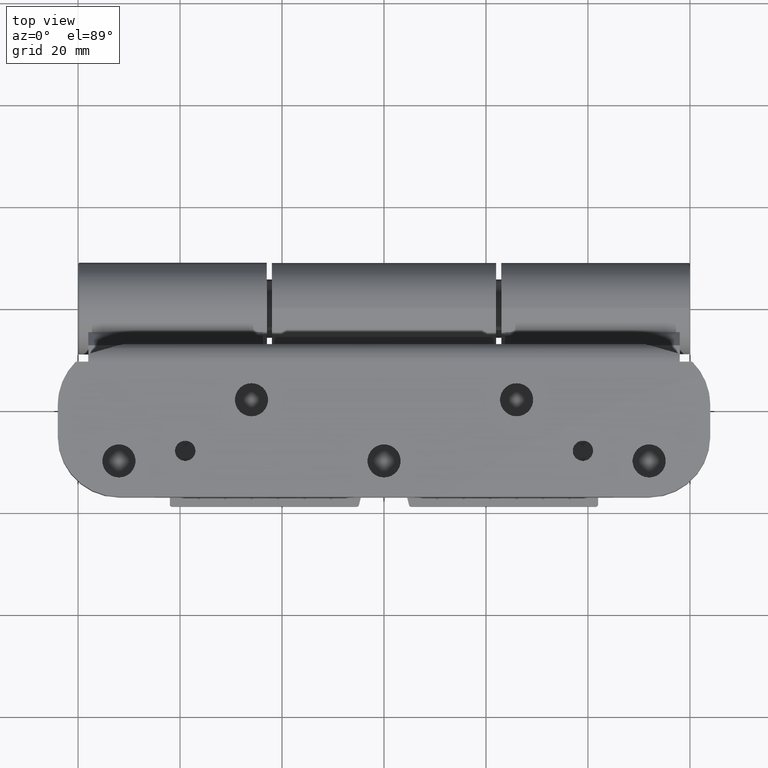
[diagram: clean part render]
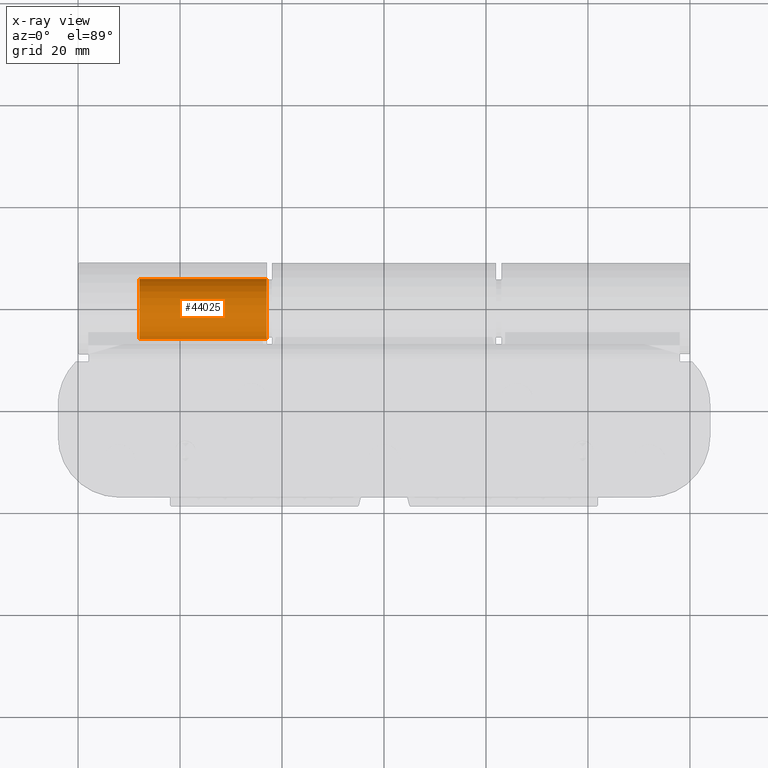
[diagram: x-ray — body ghosted, one internal face saturated and labeled with its STEP entity id]
A machine part, top view, then the same camera in x-ray: the body is ghosted and one INTERNAL B-rep face — a face not visible from any outside direction — is saturated and labeled: STEP entity #44025.
In plain terms, the highlighted cylindrical surface (edge-blend (fillet) strip) has radius 6 mm, axis along (1, 0, 0).
Its self-contained STEP definition (entity closure, byte-faithful):
#2054 = LINE ( 'NONE', #44354, #14122 ) ;
#2068 = AXIS2_PLACEMENT_3D ( 'NONE', #5859, #38346, #42998 ) ;
#3466 = ORIENTED_EDGE ( 'NONE', *, *, #27920, .F. ) ;
#3803 = DIRECTION ( 'NONE',  ( -1.000000000000000000, -2.457646059305949850E-16, -3.214216435727796904E-16 ) ) ;
#4795 = CARTESIAN_POINT ( 'NONE',  ( 25.50000000000000000, 1.721466110126807829E-14, -5.999999999999997335 ) ) ;
#5859 = CARTESIAN_POINT ( 'NONE',  ( 25.00000000000000000, 1.647987302177966740E-14, 6.938893903907228378E-15 ) ) ;
#5901 = CARTESIAN_POINT ( 'NONE',  ( 1.928529861436679227E-15, 1.774937036747276913E-30, 6.000000000000004441 ) ) ;
#7375 = CARTESIAN_POINT ( 'NONE',  ( 25.50000000000000355, 1.647987302177966740E-14, 6.938893903907228378E-15 ) ) ;
#10544 = DIRECTION ( 'NONE',  ( -1.000000000000000000, -2.457646059305949850E-16, -3.214216435727796904E-16 ) ) ;
#12735 = CIRCLE ( 'NONE', #19761, 6.000000000000004441 ) ;
#13482 = ORIENTED_EDGE ( 'NONE', *, *, #42258, .F. ) ;
#14122 = VECTOR ( 'NONE', #34772, 1000.000000000000000 ) ;
#14364 = ORIENTED_EDGE ( 'NONE', *, *, #18496, .T. ) ;
#14611 = CARTESIAN_POINT ( 'NONE',  ( 25.00000000000000355, 1.721466110126807829E-14, -5.999999999999992006 ) ) ;
#15887 = FACE_OUTER_BOUND ( 'NONE', #46494, .T. ) ;
#18496 = EDGE_CURVE ( 'NONE', #40267, #30237, #12735, .T. ) ;
#19761 = AXIS2_PLACEMENT_3D ( 'NONE', #48194, #10544, #47118 ) ;
#22368 = DIRECTION ( 'NONE',  ( -1.000000000000000000, -2.457646059305949850E-16, -3.214216435727796904E-16 ) ) ;
#24153 = CYLINDRICAL_SURFACE ( 'NONE', #50429, 6.000000000000004441 ) ;
#27920 = EDGE_CURVE ( 'NONE', #51440, #30237, #2054, .T. ) ;
#30237 = VERTEX_POINT ( 'NONE', #5901 ) ;
#34772 = DIRECTION ( 'NONE',  ( -1.000000000000000000, -2.457646059305949850E-16, -3.214216435727796904E-16 ) ) ;
#36766 = VERTEX_POINT ( 'NONE', #14611 ) ;
#36885 = ORIENTED_EDGE ( 'NONE', *, *, #40037, .T. ) ;
#37048 = VECTOR ( 'NONE', #22368, 1000.000000000000000 ) ;
#38346 = DIRECTION ( 'NONE',  ( -1.000000000000000000, -2.457646059305949850E-16, -3.214216435727796904E-16 ) ) ;
#40037 = EDGE_CURVE ( 'NONE', #36766, #40267, #46571, .T. ) ;
#40267 = VERTEX_POINT ( 'NONE', #44879 ) ;
#42258 = EDGE_CURVE ( 'NONE', #36766, #51440, #50327, .T. ) ;
#42998 = DIRECTION ( 'NONE',  ( 5.782411586589352708E-16, 5.135813185032625146E-31, 1.000000000000000000 ) ) ;
#44025 = ADVANCED_FACE ( 'NONE', ( #15887 ), #24153, .F. ) ;
#44354 = CARTESIAN_POINT ( 'NONE',  ( 25.50000000000000355, 1.647987302177967055E-14, 6.000000000000011546 ) ) ;
#44749 = DIRECTION ( 'NONE',  ( 5.782411586589352708E-16, 5.135813185032625146E-31, 1.000000000000000000 ) ) ;
#44879 = CARTESIAN_POINT ( 'NONE',  ( 1.928529861436674494E-15, 1.401972122417034111E-14, -6.000000000000000000 ) ) ;
#46494 = EDGE_LOOP ( 'NONE', ( #13482, #36885, #14364, #3466 ) ) ;
#46571 = LINE ( 'NONE', #4795, #37048 ) ;
#47118 = DIRECTION ( 'NONE',  ( 3.214216435727796411E-16, 2.958228394578792519E-31, 1.000000000000000000 ) ) ;
#48194 = CARTESIAN_POINT ( 'NONE',  ( 0.000000000000000000, 0.000000000000000000, 0.000000000000000000 ) ) ;
#50327 = CIRCLE ( 'NONE', #2068, 6.000000000000004441 ) ;
#50429 = AXIS2_PLACEMENT_3D ( 'NONE', #7375, #3803, #44749 ) ;
#51440 = VERTEX_POINT ( 'NONE', #53761 ) ;
#53761 = CARTESIAN_POINT ( 'NONE',  ( 24.99999999999999645, 1.647987302177967055E-14, 6.000000000000016875 ) ) ;